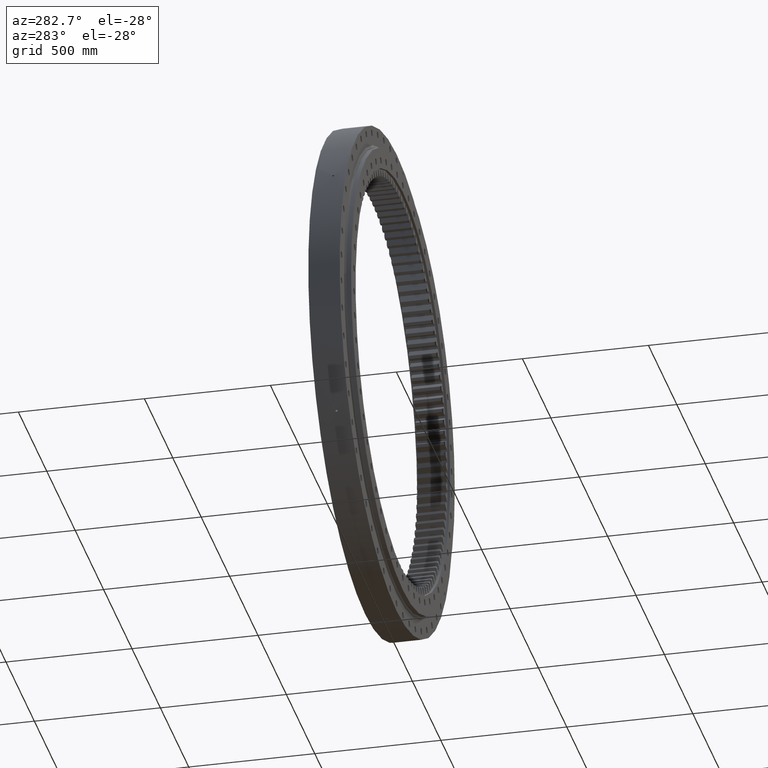
[diagram: clean part render]
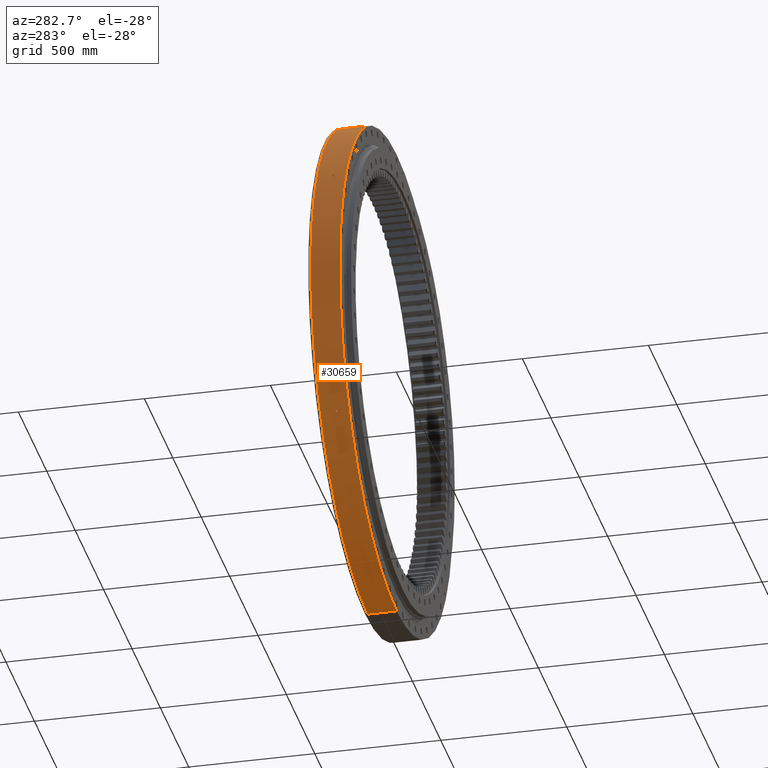
[diagram: same view with one face highlighted and labeled with its STEP entity id]
A machine part, auxiliary view. The second image highlights one B-rep face of the part: STEP entity #30659.
In plain terms, the highlighted cylindrical surface (partial cylindrical patch) has radius 1001 mm, axis along (0, -1, -0).
Its self-contained STEP definition (entity closure, byte-faithful):
#123 = CARTESIAN_POINT ( 'NONE',  ( -53.71009717715116900, 0.5890486001857689900, 999.5597077769936000 ) ) ;
#141 = CARTESIAN_POINT ( 'NONE',  ( 5.816800351749768200E-014, -22.16364734299520500, 1000.999999999999900 ) ) ;
#184 = DIRECTION ( 'NONE',  ( 1.173697223544192200E-016, -1.000000000000000000, -3.494217355385783800E-017 ) ) ;
#225 = CARTESIAN_POINT ( 'NONE',  ( -55.44209424805615100, 3.598500773544946400, 999.4655815656600500 ) ) ;
#275 = CARTESIAN_POINT ( 'NONE',  ( -895.5352936866687500, -3.906283305188838400, 447.2332695858783000 ) ) ;
#472 = CARTESIAN_POINT ( 'NONE',  ( -62.55148481795590200, 1.165122440118705200, 999.0437002542108800 ) ) ;
#600 = CARTESIAN_POINT ( 'NONE',  ( -58.49605577294612900, 4.499999984706711600, 999.2893963449601000 ) ) ;
#937 = CARTESIAN_POINT ( 'NONE',  ( -836.3232992243469000, -4.500000015293331900, -550.0584870488809200 ) ) ;
#1053 = CARTESIAN_POINT ( 'NONE',  ( -834.1708195038929700, 2.254629818377512400, -553.3173326249217300 ) ) ;
#1065 = CARTESIAN_POINT ( 'NONE',  ( -834.8135560936203800, -3.580346716517871300, -552.3471609642495000 ) ) ;
#1145 = FACE_OUTER_BOUND ( 'NONE', #3979, .T. ) ;
#1424 = CARTESIAN_POINT ( 'NONE',  ( -838.0363360817789300, -3.238286614514675600, -547.4450642312479000 ) ) ;
#1612 = CARTESIAN_POINT ( 'NONE',  ( -892.9082573457631000, 2.765460221016016200, 452.4622047582254800 ) ) ;
#1614 = CARTESIAN_POINT ( 'NONE',  ( 6.143514850021002700E-014, -49.99999999999985800, 1000.999999999999900 ) ) ;
#1653 = ORIENTED_EDGE ( 'NONE', *, *, #21719, .F. ) ;
#1685 = CARTESIAN_POINT ( 'NONE',  ( -837.2972977995744900, -4.145600684314280700, -548.5745241711293800 ) ) ;
#1859 = CARTESIAN_POINT ( 'NONE',  ( -838.7259225998566300, 1.177865458075784100, -546.3928274316252800 ) ) ;
#1955 = CARTESIAN_POINT ( 'NONE',  ( -896.2722761593717000, 2.254629818377474200, 445.7544544735959600 ) ) ;
#2013 = CARTESIAN_POINT ( 'NONE',  ( -58.49904618976302100, -4.500000015293296400, 999.2892221730144200 ) ) ;
#2170 = CARTESIAN_POINT ( 'NONE',  ( -893.4053802004301600, -3.751236001101521600, 451.4728124550855500 ) ) ;
#2292 = CARTESIAN_POINT ( 'NONE',  ( -892.6521584606968000, -1.763919964253875900, 452.9603848900544600 ) ) ;
#2402 = CARTESIAN_POINT ( 'NONE',  ( -892.4976324321650100, -0.004223968015222080400, 453.2647821417450000 ) ) ;
#2738 = CARTESIAN_POINT ( 'NONE',  ( -838.7867644021569000, -0.1107749249039266400, -546.2941732346065500 ) ) ;
#2795 = EDGE_CURVE ( 'NONE', #30788, #14313, #7138, .T. ) ;
#2929 = CARTESIAN_POINT ( 'NONE',  ( -894.5262729637369100, -4.500000015293373700, 449.2479793806604700 ) ) ;
#2977 = CARTESIAN_POINT ( 'NONE',  ( -62.69477232037120000, -0.2971005903633917600, 999.0347168760939700 ) ) ;
#3008 = CARTESIAN_POINT ( 'NONE',  ( -57.02708877419401300, 4.382877029446614600, 999.3747429568401200 ) ) ;
#3049 = CARTESIAN_POINT ( 'NONE',  ( -895.8568011685353000, -3.390448102047204100, 446.5888880405617000 ) ) ;
#3156 = B_SPLINE_CURVE_WITH_KNOTS ( 'NONE', 3,
 ( #18333, #34773, #1859, #21069, #4644, #23833, #7429, #26557, #10199, #29346 ),
 .UNSPECIFIED., .F., .F.,
 ( 4, 2, 2, 2, 4 ),
 ( 0.5001327777475546000, 0.6250995833106659500, 0.7500663888737773000, 0.8750331944368886500, 1.000000000000000000 ),
 .UNSPECIFIED. ) ;
#3158 = CARTESIAN_POINT ( 'NONE',  ( -1.790340798947973000E-013, -49.99999999999978700, -1000.999999999999900 ) ) ;
#3252 = CARTESIAN_POINT ( 'NONE',  ( -62.23949899458299500, 1.996097076471572600, 999.0631899614769500 ) ) ;
#3579 = LINE ( 'NONE', #32821, #31912 ) ;
#3635 = ORIENTED_EDGE ( 'NONE', *, *, #20009, .F. ) ;
#3742 = CARTESIAN_POINT ( 'NONE',  ( -892.4976400131396300, -2.296485245528489400E-008, 453.2647878994080800 ) ) ;
#3828 = CARTESIAN_POINT ( 'NONE',  ( -834.4564745681559500, 2.975536198828759200, -552.8864577834281100 ) ) ;
#3835 = CARTESIAN_POINT ( 'NONE',  ( -834.4564029088776400, -2.975380952713944500, -552.8865659116730700 ) ) ;
#3842 = B_SPLINE_CURVE_WITH_KNOTS ( 'NONE', 3,
 ( #13152, #32305, #15901, #35104, #18660, #2170, #21384, #4968, #24136, #7744, #26882, #10524, #29674, #13257, #32420, #16020, #35219, #18768, #2292, #21505, #5077, #24261, #7861, #26992, #10632, #29804, #13365, #32530, #16140, #35346, #18877, #2402, #21628, #5191 ),
 .UNSPECIFIED., .F., .F.,
 ( 4, 2, 2, 2, 2, 1, 1, 1, 2, 2, 2, 2, 2, 2, 2, 1, 1, 1, 2, 4 ),
 ( 0.0000000000000000000, 0.1250331944368738800, 0.1875497916553058000, 0.2188080902645257500, 0.2344372395691391700, 0.2422518142214459000, 0.2461591015475992600, 0.2481127452106789700, 0.2490895670422187700, 0.2500663888737586500, 0.3125829860924516100, 0.3750995833111446200, 0.4376161805298376400, 0.4688744791391841200, 0.4845036284438573600, 0.4923182030961938400, 0.4962254904223620300, 0.4981791340854462300, 0.4991559559169883600, 0.5001327777485304900 ),
 .UNSPECIFIED. ) ;
#3979 = EDGE_LOOP ( 'NONE', ( #29673, #12527, #30541, #6295 ) ) ;
#4032 = CARTESIAN_POINT ( 'NONE',  ( -60.45227396438700400, -3.906283305188817100, 999.1729491111520900 ) ) ;
#4035 = CARTESIAN_POINT ( 'NONE',  ( -833.8420579171032600, -1.529317444788329800E-008, -553.8126239519735900 ) ) ;
#4191 = CARTESIAN_POINT ( 'NONE',  ( -838.0041967284373600, -3.294402471475352800, -547.4942576542159700 ) ) ;
#4394 = CARTESIAN_POINT ( 'NONE',  ( -893.5082248616369000, 3.932038731058045600, 451.2727333776863400 ) ) ;
#4644 = CARTESIAN_POINT ( 'NONE',  ( -838.2978922458227100, 2.765460221009656400, -547.0501317312090400 ) ) ;
#4698 = CARTESIAN_POINT ( 'NONE',  ( -837.9763246320031800, -3.340846793404502100, -547.5369094383629500 ) ) ;
#4737 = CARTESIAN_POINT ( 'NONE',  ( -896.0419551329181300, 2.975536198828663300, 446.2172764367142600 ) ) ;
#4968 = CARTESIAN_POINT ( 'NONE',  ( -893.2465987243573400, -3.489101431032666700, 451.7869754579045300 ) ) ;
#5077 = CARTESIAN_POINT ( 'NONE',  ( -892.5312135602918000, -0.8681621089679700800, 453.1980073332677000 ) ) ;
#5191 = CARTESIAN_POINT ( 'NONE',  ( -892.4976400131396300, -2.296485245528489400E-008, 453.2647878994080800 ) ) ;
#5741 = DIRECTION ( 'NONE',  ( 5.551115123125782700E-017, -3.465980970982631900E-017, 1.000000000000000000 ) ) ;
#5797 = CARTESIAN_POINT ( 'NONE',  ( -58.20297373938638000, 4.499999984706710700, 999.3064664295393400 ) ) ;
#5848 = CARTESIAN_POINT ( 'NONE',  ( -896.1249702626129200, -2.749112268494552600, 446.0505180559710000 ) ) ;
#6050 = CARTESIAN_POINT ( 'NONE',  ( -61.77531099758158500, 2.743901500128052500, 999.0920065970430000 ) ) ;
#6295 = ORIENTED_EDGE ( 'NONE', *, *, #17800, .F. ) ;
#6499 = CARTESIAN_POINT ( 'NONE',  ( -833.8420579171032600, -1.529317444788329800E-008, -553.8126239519735900 ) ) ;
#6628 = CARTESIAN_POINT ( 'NONE',  ( -834.8109806994732500, 3.576961838036965900, -552.3510541936482200 ) ) ;
#6637 = CARTESIAN_POINT ( 'NONE',  ( -834.1720002194113000, -2.258464581218652800, -553.3155528594114700 ) ) ;
#6854 = DIRECTION ( 'NONE',  ( -1.173697223544192200E-016, 1.000000000000000000, 8.822830751849692900E-017 ) ) ;
#6864 = VERTEX_POINT ( 'NONE', #28575 ) ;
#7138 = B_SPLINE_CURVE_WITH_KNOTS ( 'NONE', 3,
 ( #17017, #2013, #28677, #32559, #34782, #26769, #4032, #30054, #30434, #24288, #16726, #12406, #30714, #26777, #8914, #25409, #2977, #27025 ),
 .UNSPECIFIED., .F., .F.,
 ( 4, 2, 2, 2, 2, 2, 2, 2, 4 ),
 ( 0.02110576851530860200, 0.02198441943667180400, 0.02286307035803500700, 0.02374172127939821000, 0.02462037220076141200, 0.02549902312212461200, 0.02637767404348781400, 0.02725632496485101000, 0.02813497588621420600 ),
 .UNSPECIFIED. ) ;
#7186 = CARTESIAN_POINT ( 'NONE',  ( -894.2619084245410500, 4.499999984706656500, 449.7743724570999600 ) ) ;
#7413 = CARTESIAN_POINT ( 'NONE',  ( -896.5368302374780600, 0.2973931663676460700, 445.2220929241219100 ) ) ;
#7429 = CARTESIAN_POINT ( 'NONE',  ( -837.5677635711376800, 3.932038731055854400, -548.1644545316715900 ) ) ;
#7524 = CARTESIAN_POINT ( 'NONE',  ( -895.7555350885501200, 3.576961838036913900, 446.7919895471224000 ) ) ;
#7633 = FACE_BOUND ( 'NONE', #18906, .T. ) ;
#7723 = EDGE_CURVE ( 'NONE', #32362, #34369, #23954, .T. ) ;
#7744 = CARTESIAN_POINT ( 'NONE',  ( -893.1690353992380600, -3.340846793395658500, 451.9403301820597100 ) ) ;
#7799 = CARTESIAN_POINT ( 'NONE',  ( -838.7876409684212100, -2.297867163744478400E-008, -546.2932351193359200 ) ) ;
#7861 = CARTESIAN_POINT ( 'NONE',  ( -892.5025079389879500, -0.3358842403083726100, 453.2543592952826500 ) ) ;
#7928 = CARTESIAN_POINT ( 'NONE',  ( -838.7876322051986300, -0.004604410138225904400, -546.2932293645850500 ) ) ;
#8033 = CARTESIAN_POINT ( 'NONE',  ( -836.5586060108626000, -4.500000015293331900, -549.7007204610322300 ) ) ;
#8504 = FACE_BOUND ( 'NONE', #22669, .T. ) ;
#8625 = CARTESIAN_POINT ( 'NONE',  ( -896.3337933886986100, -1.996048218433605200, 445.6307254273058900 ) ) ;
#8830 = CARTESIAN_POINT ( 'NONE',  ( -61.17081543727868400, 3.390685805115340100, 999.1292081046175300 ) ) ;
#8911 = EDGE_CURVE ( 'NONE', #34417, #29686, #3579, .T. ) ;
#8914 = CARTESIAN_POINT ( 'NONE',  ( -62.54959784288273300, -1.173031028331439600, 999.0438184546160300 ) ) ;
#8958 = EDGE_CURVE ( 'NONE', #14899, #29686, #21183, .T. ) ;
#9286 = CARTESIAN_POINT ( 'NONE',  ( -833.8420579171032600, 0.2973931663676865300, -553.8126239519737100 ) ) ;
#9402 = CARTESIAN_POINT ( 'NONE',  ( -835.2269425153566500, 4.045626621761965000, -551.7218754687313500 ) ) ;
#9408 = CARTESIAN_POINT ( 'NONE',  ( -833.9702074261040300, -1.455001650605779500, -553.6196399524699200 ) ) ;
#9863 = AXIS2_PLACEMENT_3D ( 'NONE', #24898, #184, #5741 ) ;
#10146 = LINE ( 'NONE', #141, #23831 ) ;
#10199 = CARTESIAN_POINT ( 'NONE',  ( -836.6469867313222700, 4.499999984706680500, -549.5663441038568600 ) ) ;
#10294 = CARTESIAN_POINT ( 'NONE',  ( -895.4186312371933800, 4.045626621761886800, 447.4668124091402900 ) ) ;
#10524 = CARTESIAN_POINT ( 'NONE',  ( -893.1195008415495500, -3.238286614507509800, 452.0382242256389400 ) ) ;
#10632 = CARTESIAN_POINT ( 'NONE',  ( -892.4983791230314400, -0.1436212880177891700, 453.2627548440990500 ) ) ;
#10705 = CARTESIAN_POINT ( 'NONE',  ( -838.7875660596593000, -0.02249321751446273900, -546.2932441220414100 ) ) ;
#10989 = CARTESIAN_POINT ( 'NONE',  ( -838.7874438673571800, -0.04507707817842632900, -546.2933353706264400 ) ) ;
#11072 = CARTESIAN_POINT ( 'NONE',  ( -836.3232992243466700, 4.499999984706673400, -550.0584870488808100 ) ) ;
#11224 = CARTESIAN_POINT ( 'NONE',  ( -838.7872632152021900, -0.06619493256617349500, -546.2935400572921500 ) ) ;
#11307 = CARTESIAN_POINT ( 'NONE',  ( -838.7810434952458500, -0.3358842403311181300, -546.3026651688483100 ) ) ;
#11345 = CARTESIAN_POINT ( 'NONE',  ( -838.7657665641706900, -0.6256152559329912800, -546.3260988310001900 ) ) ;
#11385 = CARTESIAN_POINT ( 'NONE',  ( -896.4721251969492600, -1.173031028331491800, 445.3523684988694000 ) ) ;
#11401 = CARTESIAN_POINT ( 'NONE',  ( -838.7465940752368900, -0.8681621090002056300, -546.3557009471400100 ) ) ;
#11431 = CARTESIAN_POINT ( 'NONE',  ( -838.6644656583565600, -1.437042305629823600, -546.4821032343032800 ) ) ;
#11572 = CARTESIAN_POINT ( 'NONE',  ( -60.45325996462229100, 3.905891569578857900, 999.1728899068973500 ) ) ;
#11839 = CARTESIAN_POINT ( 'NONE',  ( -838.6012794531036400, -1.763919964283712000, -546.5792535249606800 ) ) ;
#11927 = CARTESIAN_POINT ( 'NONE',  ( -836.1603290349384000, -4.500000015293332800, -550.3062711840052500 ) ) ;
#11949 = CARTESIAN_POINT ( 'NONE',  ( -838.3990735169992400, -2.460531877008639500, -546.8894819504211000 ) ) ;
#11991 = ORIENTED_EDGE ( 'NONE', *, *, #21766, .T. ) ;
#12031 = CARTESIAN_POINT ( 'NONE',  ( -835.9990136380135900, -4.470769646186595600, -550.5512980099066500 ) ) ;
#12150 = CARTESIAN_POINT ( 'NONE',  ( -835.6816333547277500, 4.356198128965611500, -551.0329319442098500 ) ) ;
#12162 = CARTESIAN_POINT ( 'NONE',  ( -833.8581797090478200, -0.5911220564803472100, -553.7883526357344400 ) ) ;
#12406 = CARTESIAN_POINT ( 'NONE',  ( -62.09932497557144200, -2.258464581218607000, 999.0719197453938700 ) ) ;
#12527 = ORIENTED_EDGE ( 'NONE', *, *, #8911, .T. ) ;
#12530 = EDGE_CURVE ( 'NONE', #34417, #29509, #34860, .T. ) ;
#12633 = EDGE_CURVE ( 'NONE', #30788, #35324, #22845, .T. ) ;
#13032 = CARTESIAN_POINT ( 'NONE',  ( -895.0493340628706800, 4.356198128965529800, 448.2050579891644000 ) ) ;
#13069 = CARTESIAN_POINT ( 'NONE',  ( -58.20297373938638700, -4.500000015293294600, 999.3064664295394600 ) ) ;
#13072 = DIRECTION ( 'NONE',  ( 1.173697223544192200E-016, -1.000000000000000000, -3.494217355385783800E-017 ) ) ;
#13152 = CARTESIAN_POINT ( 'NONE',  ( -894.5262729637369100, -4.500000015293373700, 449.2479793806604700 ) ) ;
#13257 = CARTESIAN_POINT ( 'NONE',  ( -893.1006820671341300, -3.197407672163022200, 452.0754047482292300 ) ) ;
#13365 = CARTESIAN_POINT ( 'NONE',  ( -892.4977152205467500, -0.06619493255641380200, 453.2643082865456000 ) ) ;
#13409 = CARTESIAN_POINT ( 'NONE',  ( -57.77548539244760700, -4.500000015293294600, 999.3313647904192300 ) ) ;
#13524 = CARTESIAN_POINT ( 'NONE',  ( -55.57369263709191600, -3.653220908615754300, 999.4560929048618600 ) ) ;
#13571 = CARTESIAN_POINT ( 'NONE',  ( -55.71576539613841600, -3.751236001126307500, 999.4481613588081900 ) ) ;
#13646 = CARTESIAN_POINT ( 'NONE',  ( -56.14365050817587400, -4.013416345553450200, 999.4241904270647900 ) ) ;
#13662 = EDGE_CURVE ( 'NONE', #35324, #28351, #16134, .T. ) ;
#13713 = EDGE_CURVE ( 'NONE', #14313, #28351, #30138, .T. ) ;
#13809 = CARTESIAN_POINT ( 'NONE',  ( -57.26309134567581800, -4.439702155455909100, 999.3607858838087200 ) ) ;
#13933 = CARTESIAN_POINT ( 'NONE',  ( -55.14183719043374800, -3.294402471478329100, 999.4800516719069500 ) ) ;
#13939 = ORIENTED_EDGE ( 'NONE', *, *, #13662, .F. ) ;
#13966 = CARTESIAN_POINT ( 'NONE',  ( -53.82710770146160000, 1.177865458075817900, 999.5543694998294800 ) ) ;
#13990 = DIRECTION ( 'NONE',  ( 1.173697223544192200E-016, -1.000000000000000000, -3.494217355385783800E-017 ) ) ;
#14006 = CARTESIAN_POINT ( 'NONE',  ( -895.0483513162815800, -4.356562847564605400, 448.2070184079345800 ) ) ;
#14063 = CYLINDRICAL_SURFACE ( 'NONE', #9863, 1000.999999999999900 ) ;
#14126 = CARTESIAN_POINT ( 'NONE',  ( -896.5368302374781700, -0.2971005903634649800, 445.2220929241220200 ) ) ;
#14195 = CARTESIAN_POINT ( 'NONE',  ( -62.69477232037115800, -1.529313819840177900E-008, 999.0347168760936300 ) ) ;
#14313 = VERTEX_POINT ( 'NONE', #31180 ) ;
#14315 = CARTESIAN_POINT ( 'NONE',  ( -59.65090648700672200, 4.269913052637601700, 999.2211180362249900 ) ) ;
#14520 = ORIENTED_EDGE ( 'NONE', *, *, #12633, .F. ) ;
#14777 = CARTESIAN_POINT ( 'NONE',  ( -833.9214815019721500, 1.165122440118652200, -553.6930250238959800 ) ) ;
#14786 = CARTESIAN_POINT ( 'NONE',  ( -835.5259209993375900, -4.270358758965170600, -551.2689993946704600 ) ) ;
#14890 = CARTESIAN_POINT ( 'NONE',  ( -836.1619750806763700, 4.499999984706678700, -550.3037684930466200 ) ) ;
#14899 = VERTEX_POINT ( 'NONE', #1614 ) ;
#14903 = CARTESIAN_POINT ( 'NONE',  ( -833.8420579171032600, -1.529317444788329800E-008, -553.8126239519735900 ) ) ;
#15046 = CARTESIAN_POINT ( 'NONE',  ( -55.19271076724034900, -3.340846793408618300, 999.4772396204118600 ) ) ;
#15061 = VERTEX_POINT ( 'NONE', #35472 ) ;
#15174 = CARTESIAN_POINT ( 'NONE',  ( -55.29512903254073600, -3.431549258200794900, 999.4715714788976600 ) ) ;
#15336 = VERTEX_POINT ( 'NONE', #3742 ) ;
#15594 = CARTESIAN_POINT ( 'NONE',  ( -55.36430151671680700, -3.489101431050981800, 999.4677340682886800 ) ) ;
#15685 = CARTESIAN_POINT ( 'NONE',  ( -896.4729663199314000, 1.165122440118616000, 445.3506752303168800 ) ) ;
#15760 = CARTESIAN_POINT ( 'NONE',  ( -53.70999904471483400, -2.297862804065447900E-008, 999.5580230187420100 ) ) ;
#15799 = CARTESIAN_POINT ( 'NONE',  ( -894.6580308536260900, 4.499999984706621000, 448.9856278519150700 ) ) ;
#15829 = CARTESIAN_POINT ( 'NONE',  ( -55.03016807923457100, -3.186076329583747800, 999.4862083227768600 ) ) ;
#15878 = CARTESIAN_POINT ( 'NONE',  ( -55.04155609547285600, -3.197407672169836300, 999.4855811814612700 ) ) ;
#15901 = CARTESIAN_POINT ( 'NONE',  ( -894.1033737941719400, -4.439702155443713500, 450.0891011373708500 ) ) ;
#16020 = CARTESIAN_POINT ( 'NONE',  ( -893.0955311793251200, -3.186076329575780400, 452.0855806302490100 ) ) ;
#16059 = CARTESIAN_POINT ( 'NONE',  ( -55.05401050080401900, -3.209744162153377100, 999.4848951686427700 ) ) ;
#16103 = CARTESIAN_POINT ( 'NONE',  ( -55.08316475977208900, -3.238286614516185500, 999.4832884568785400 ) ) ;
#16124 = VERTEX_POINT ( 'NONE', #27505 ) ;
#16134 = B_SPLINE_CURVE_WITH_KNOTS ( 'NONE', 3,
 ( #27608, #123, #13966, #33138, #16735, #225, #19474, #3008, #22209, #5797 ),
 .UNSPECIFIED., .F., .F.,
 ( 4, 2, 2, 2, 4 ),
 ( 0.5001327777475533800, 0.6250995833106650600, 0.7500663888737766300, 0.8750331944368883200, 1.000000000000000000 ),
 .UNSPECIFIED. ) ;
#16140 = CARTESIAN_POINT ( 'NONE',  ( -892.4976103553304900, -0.02249321750814772100, 453.2647185251643700 ) ) ;
#16172 = CARTESIAN_POINT ( 'NONE',  ( -53.93515128527637600, -1.437042305638047700, 999.5457841285905300 ) ) ;
#16217 = CARTESIAN_POINT ( 'NONE',  ( -54.05087900759797000, -1.763919964290980200, 999.5396384150016000 ) ) ;
#16288 = CARTESIAN_POINT ( 'NONE',  ( -54.42064767307452700, -2.460531877012798900, 999.5196371502689800 ) ) ;
#16334 = CARTESIAN_POINT ( 'NONE',  ( -54.67561084365883800, -2.830677733647925200, 999.5057278854939100 ) ) ;
#16385 = CARTESIAN_POINT ( 'NONE',  ( -53.71642618590059500, -0.2514979685270209400, 999.5573233213132200 ) ) ;
#16458 = CARTESIAN_POINT ( 'NONE',  ( -53.72146444373979100, -0.3358842403368558800, 999.5570244641274900 ) ) ;
#16538 = CARTESIAN_POINT ( 'NONE',  ( -53.74939705600516500, -0.6256152559408613100, 999.5555110848001700 ) ) ;
#16582 = CARTESIAN_POINT ( 'NONE',  ( -53.78461948505530200, -0.8681621090087192600, 999.5537082803997500 ) ) ;
#16726 = CARTESIAN_POINT ( 'NONE',  ( -61.77140512362383600, -2.749112268494515700, 999.0922482409831700 ) ) ;
#16735 = CARTESIAN_POINT ( 'NONE',  ( -54.61036509993460400, 2.765460221009677700, 999.5123364894373000 ) ) ;
#16760 = ORIENTED_EDGE ( 'NONE', *, *, #23625, .T. ) ;
#16779 = CARTESIAN_POINT ( 'NONE',  ( -895.4198382239716200, -4.044440409941506300, 447.4643982154885300 ) ) ;
#16892 = EDGE_CURVE ( 'NONE', #32362, #31399, #22978, .T. ) ;
#16946 = CARTESIAN_POINT ( 'NONE',  ( -53.71212927720601000, -0.1436212880356238000, 999.5576465790297800 ) ) ;
#16979 = CARTESIAN_POINT ( 'NONE',  ( -62.66563844398267900, 0.5898149743530550800, 999.0365463930562600 ) ) ;
#17017 = CARTESIAN_POINT ( 'NONE',  ( -58.20297373938638700, -4.500000015293294600, 999.3064664295394600 ) ) ;
#17090 = CARTESIAN_POINT ( 'NONE',  ( -58.78763371543068700, 4.471548277093387600, 999.2722844828621200 ) ) ;
#17171 = CARTESIAN_POINT ( 'NONE',  ( -838.0653631000908500, -3.186076329583844600, -547.4006276925370000 ) ) ;
#17300 = CARTESIAN_POINT ( 'NONE',  ( -53.71045200534126000, -0.06619493256782922600, 999.5578483438354200 ) ) ;
#17423 = CARTESIAN_POINT ( 'NONE',  ( -53.71004429566752200, -0.02249321751501601200, 999.5579626472037900 ) ) ;
#17541 = CARTESIAN_POINT ( 'NONE',  ( -834.0943529952630800, 1.996097076471518000, -553.4325822288674300 ) ) ;
#17550 = CARTESIAN_POINT ( 'NONE',  ( -835.0830197222777500, -3.906283305188827300, -551.9396795252757800 ) ) ;
#17563 = EDGE_CURVE ( 'NONE', #34369, #22397, #3156, .T. ) ;
#17648 = CARTESIAN_POINT ( 'NONE',  ( -53.71018441541145400, -0.04507707817958465900, 999.5579024498582600 ) ) ;
#17699 = CARTESIAN_POINT ( 'NONE',  ( -53.71000354017476800, -0.007205652506109765100, 999.5580051039505600 ) ) ;
#17800 = EDGE_CURVE ( 'NONE', #29509, #14899, #10146, .T. ) ;
#17830 = CARTESIAN_POINT ( 'NONE',  ( -53.71001076255112100, -0.01171487212509205800, 999.5579923923111200 ) ) ;
#17895 = CARTESIAN_POINT ( 'NONE',  ( -53.70999844256573400, -0.004604410138181719300, 999.5580125521933000 ) ) ;
#18081 = CARTESIAN_POINT ( 'NONE',  ( -892.7576247180628600, 2.266285391879827600, 452.7597925418518800 ) ) ;
#18333 = CARTESIAN_POINT ( 'NONE',  ( -838.7876409684212100, -2.297867163744478400E-008, -546.2932351193359200 ) ) ;
#18424 = CARTESIAN_POINT ( 'NONE',  ( -896.3338519898495600, 1.996097076471462900, 445.6306077326114000 ) ) ;
#18584 = CARTESIAN_POINT ( 'NONE',  ( -838.2595461550635000, -2.830677733645931200, -547.1033319007895000 ) ) ;
#18653 = ORIENTED_EDGE ( 'NONE', *, *, #17563, .F. ) ;
#18660 = CARTESIAN_POINT ( 'NONE',  ( -893.5985633206004200, -4.013416345526501900, 451.0902676123006400 ) ) ;
#18696 = CARTESIAN_POINT ( 'NONE',  ( -53.71000024050987100, -0.004223968019882963200, 999.5580135745939300 ) ) ;
#18705 = AXIS2_PLACEMENT_3D ( 'NONE', #29947, #6854, #33230 ) ;
#18768 = CARTESIAN_POINT ( 'NONE',  ( -892.8197211900678700, -2.460531876987595900, 452.6301551998624900 ) ) ;
#18781 = CARTESIAN_POINT ( 'NONE',  ( 5.468638946483091600E-014, 65.00000000000009900, 1000.999999999999900 ) ) ;
#18877 = CARTESIAN_POINT ( 'NONE',  ( -892.4976267462051300, -0.007205652501077251600, 453.2647750488298500 ) ) ;
#18906 = EDGE_LOOP ( 'NONE', ( #33995, #30114, #13939, #14520 ) ) ;
#18915 = CARTESIAN_POINT ( 'NONE',  ( -53.70999904471483400, -2.297862804065447900E-008, 999.5580230187420100 ) ) ;
#19440 = CARTESIAN_POINT ( 'NONE',  ( -836.8402824485361900, -4.439702155449324100, -549.2716847464661200 ) ) ;
#19472 = ORIENTED_EDGE ( 'NONE', *, *, #7723, .F. ) ;
#19474 = CARTESIAN_POINT ( 'NONE',  ( -55.94046129049388600, 3.932038731055872600, 999.4371879093598600 ) ) ;
#19480 = CARTESIAN_POINT ( 'NONE',  ( -838.7876085862360500, -0.01171487212484562100, -546.2932299540644900 ) ) ;
#19518 = CARTESIAN_POINT ( 'NONE',  ( -895.7534511500617800, -3.580346716517869100, 446.7961665185778200 ) ) ;
#19645 = CARTESIAN_POINT ( 'NONE',  ( -838.7876232060270900, -0.007205652506002839300, -546.2932300551228800 ) ) ;
#19702 = CARTESIAN_POINT ( 'NONE',  ( -62.46507865855290500, 1.450989080068843600, 999.0491112649460800 ) ) ;
#19820 = CARTESIAN_POINT ( 'NONE',  ( -58.20297373938638000, 4.499999984706710700, 999.3064664295393400 ) ) ;
#20009 = EDGE_CURVE ( 'NONE', #16124, #15336, #3842, .T. ) ;
#20018 = ORIENTED_EDGE ( 'NONE', *, *, #27264, .T. ) ;
#20137 = CARTESIAN_POINT ( 'NONE',  ( -836.3232992243469000, -4.500000015293331900, -550.0584870488809200 ) ) ;
#20164 = B_SPLINE_CURVE_WITH_KNOTS ( 'NONE', 3,
 ( #23821, #7413, #32072, #15685, #34880, #18424, #1955, #21173, #4737, #23922, #7524, #26654, #10294, #29445, #13032, #32180, #15799, #35001 ),
 .UNSPECIFIED., .F., .F.,
 ( 4, 2, 2, 2, 2, 2, 2, 2, 4 ),
 ( 8.121357501130412000E-018, 0.0008795162816889978700, 0.001759032563377987500, 0.002638548845066976600, 0.003518065126755965900, 0.004397581408444954300, 0.005277097690133942700, 0.006156613971822932000, 0.007036130253511921300 ),
 .UNSPECIFIED. ) ;
#20283 = CARTESIAN_POINT ( 'NONE',  ( -834.3514029322162700, 2.743901500127981800, -553.0449919491154600 ) ) ;
#20294 = CARTESIAN_POINT ( 'NONE',  ( -834.6857226752373400, -3.390448102047200200, -552.5403039447377300 ) ) ;
#20519 = CARTESIAN_POINT ( 'NONE',  ( -836.3232992243469000, -4.500000015293331900, -550.0584870488809200 ) ) ;
#20630 = CARTESIAN_POINT ( 'NONE',  ( -837.6896148043148300, -3.751236001114605300, -547.9753489037433400 ) ) ;
#20655 = B_SPLINE_CURVE_WITH_KNOTS ( 'NONE', 3,
 ( #28981, #26204, #34535, #18081, #1612, #20835, #4394, #23577, #7186, #26330 ),
 .UNSPECIFIED., .F., .F.,
 ( 4, 2, 2, 2, 4 ),
 ( 0.5001327777485304900, 0.6250995833113979200, 0.7500663888742653600, 0.8750331944371325700, 1.000000000000000000 ),
 .UNSPECIFIED. ) ;
#20835 = CARTESIAN_POINT ( 'NONE',  ( -893.2836309680805000, 3.598500773548376100, 451.7185287249958500 ) ) ;
#21063 = EDGE_LOOP ( 'NONE', ( #21086, #20018, #18653, #19472 ) ) ;
#21069 = CARTESIAN_POINT ( 'NONE',  ( -838.4802945124483800, 2.266285391871817500, -546.7708861571684300 ) ) ;
#21086 = ORIENTED_EDGE ( 'NONE', *, *, #16892, .T. ) ;
#21173 = CARTESIAN_POINT ( 'NONE',  ( -896.1267139298011000, 2.743901500127937000, 446.0470146479296400 ) ) ;
#21183 = CIRCLE ( 'NONE', #24174, 1000.999999999999900 ) ;
#21384 = CARTESIAN_POINT ( 'NONE',  ( -893.3412127412830200, -3.653220908592729600, 451.5998168466272200 ) ) ;
#21505 = CARTESIAN_POINT ( 'NONE',  ( -892.5996169436292600, -1.437042305597548800, 453.0636808942993500 ) ) ;
#21628 = CARTESIAN_POINT ( 'NONE',  ( -892.4976306477676600, -0.004604410124421257800, 453.2647831876100200 ) ) ;
#21719 = EDGE_CURVE ( 'NONE', #15336, #6864, #20655, .T. ) ;
#21766 = EDGE_CURVE ( 'NONE', #15061, #6864, #20164, .T. ) ;
#21854 = B_SPLINE_CURVE_WITH_KNOTS ( 'NONE', 3,
 ( #2929, #22010, #30431, #14006, #33178, #16779, #275, #19518, #3049, #22248, #5848, #24992, #8625, #27764, #11385, #30549, #14126, #33316 ),
 .UNSPECIFIED., .F., .F.,
 ( 4, 2, 2, 2, 2, 2, 2, 2, 4 ),
 ( 0.02110576851530874400, 0.02198441943667192600, 0.02286307035803510800, 0.02374172127939829000, 0.02462037220076147100, 0.02549902312212465300, 0.02637767404348783500, 0.02725632496485101700, 0.02813497588621419900 ),
 .UNSPECIFIED. ) ;
#22010 = CARTESIAN_POINT ( 'NONE',  ( -894.6593752247049500, -4.500000015293363000, 448.9829509890109300 ) ) ;
#22177 = CARTESIAN_POINT ( 'NONE',  ( -56.43082490139589400, -4.145600684326720600, 999.4079925000592100 ) ) ;
#22189 = FACE_BOUND ( 'NONE', #21063, .T. ) ;
#22209 = CARTESIAN_POINT ( 'NONE',  ( -57.61492169321446300, 4.499999984706709800, 999.3407165609561400 ) ) ;
#22248 = CARTESIAN_POINT ( 'NONE',  ( -896.0420129450861900, -2.975380952713947200, 446.2171603138365900 ) ) ;
#22397 = VERTEX_POINT ( 'NONE', #11072 ) ;
#22431 = CARTESIAN_POINT ( 'NONE',  ( -53.71124975950325400, -0.1107749249065368100, 999.5577329477240500 ) ) ;
#22470 = CARTESIAN_POINT ( 'NONE',  ( -62.10145665547536000, 2.254629818377587000, 999.0717870985159800 ) ) ;
#22669 = EDGE_LOOP ( 'NONE', ( #16760, #11991, #1653, #3635 ) ) ;
#22670 = CARTESIAN_POINT ( 'NONE',  ( -55.03326225286296800, -3.189160212842113000, 999.4860379420888400 ) ) ;
#22845 = B_SPLINE_CURVE_WITH_KNOTS ( 'NONE', 3,
 ( #13069, #13409, #13809, #22177, #13646, #13571, #13524, #15594, #15174, #15046, #13933, #16103, #16059, #15878, #22670, #15829, #16334, #16288, #16217, #16172, #16582, #16538, #16458, #16385, #16946, #22431, #17300, #17648, #17423, #17830, #17699, #18696, #17895, #18915 ),
 .UNSPECIFIED., .F., .F.,
 ( 4, 2, 2, 2, 2, 1, 1, 1, 2, 2, 2, 2, 2, 2, 2, 1, 1, 1, 2, 4 ),
 ( 0.0000000000000000000, 0.1250331944368858700, 0.1875497916553281700, 0.2188080902645498400, 0.2344372395691611500, 0.2422518142214668000, 0.2461591015476192700, 0.2481127452106951200, 0.2490895670422334800, 0.2500663888737718100, 0.3125829860922171300, 0.3750995833106624500, 0.4376161805291078900, 0.4688744791383306900, 0.4845036284429420900, 0.4923182030952477600, 0.4962254904214006300, 0.4981791340844771200, 0.4991559559160151900, 0.5001327777475533800 ),
 .UNSPECIFIED. ) ;
#22978 = B_SPLINE_CURVE_WITH_KNOTS ( 'NONE', 3,
 ( #937, #11927, #12031, #31208, #14786, #33976, #17550, #1065, #20294, #3835, #23057, #6637, #25769, #9408, #28551, #12162, #31323, #14903 ),
 .UNSPECIFIED., .F., .F.,
 ( 4, 2, 2, 2, 2, 2, 2, 2, 4 ),
 ( 0.02110576851530855000, 0.02198441943667173200, 0.02286307035803491300, 0.02374172127939809200, 0.02462037220076127400, 0.02549902312212445900, 0.02637767404348763700, 0.02725632496485081900, 0.02813497588621400100 ),
 .UNSPECIFIED. ) ;
#23046 = CARTESIAN_POINT ( 'NONE',  ( -834.6858681629859100, 3.390685805115301900, -552.5400841912055500 ) ) ;
#23057 = CARTESIAN_POINT ( 'NONE',  ( -834.3535651389854600, -2.749112268494549900, -553.0417301850138800 ) ) ;
#23512 = DIRECTION ( 'NONE',  ( 1.173697223544192200E-016, -1.000000000000000000, -3.494217355385783800E-017 ) ) ;
#23577 = CARTESIAN_POINT ( 'NONE',  ( -893.9974596882663000, 4.382877029447044500, 450.3004638960936200 ) ) ;
#23625 = EDGE_CURVE ( 'NONE', #16124, #15061, #21854, .T. ) ;
#23821 = CARTESIAN_POINT ( 'NONE',  ( -896.5368302374778300, -1.529321671479578400E-008, 445.2220929241219100 ) ) ;
#23831 = VECTOR ( 'NONE', #13990, 1000.000000000000000 ) ;
#23833 = CARTESIAN_POINT ( 'NONE',  ( -837.8415367200186700, 3.598500773544929000, -547.7470528406614700 ) ) ;
#23922 = CARTESIAN_POINT ( 'NONE',  ( -895.8566836002678400, 3.390685805115204700, 446.5891239134140300 ) ) ;
#23954 = B_SPLINE_CURVE_WITH_KNOTS ( 'NONE', 3,
 ( #20519, #8033, #19440, #1685, #25999, #20630, #24891, #24612, #24445, #4698, #4191, #1424, #33953, #33880, #28324, #17171, #18584, #11949, #11839, #11431, #11401, #11345, #11307, #28283, #27441, #2738, #11224, #10989, #10705, #19480, #19645, #32710, #7928, #7799 ),
 .UNSPECIFIED., .F., .F.,
 ( 4, 2, 2, 2, 2, 1, 1, 1, 2, 2, 2, 2, 2, 2, 2, 1, 1, 1, 2, 4 ),
 ( 0.0000000000000000000, 0.1250331944367675000, 0.1875497916551358600, 0.2188080902643175000, 0.2344372395689125500, 0.2422518142212100600, 0.2461591015473587900, 0.2481127452104387500, 0.2490895670419731600, 0.2500663888735075700, 0.3125829860920179000, 0.3750995833105281700, 0.4376161805290385000, 0.4688744791382959400, 0.4845036284429245500, 0.4923182030952394900, 0.4962254904213970800, 0.4981791340844758400, 0.4991559559160152500, 0.5001327777475546000 ),
 .UNSPECIFIED. ) ;
#24136 = CARTESIAN_POINT ( 'NONE',  ( -893.2153357773426000, -3.431549258184392900, 451.8487992917453100 ) ) ;
#24174 = AXIS2_PLACEMENT_3D ( 'NONE', #29128, #23512, #28365 ) ;
#24261 = CARTESIAN_POINT ( 'NONE',  ( -892.5151636201767400, -0.6256152559031834500, 453.2294122538057800 ) ) ;
#24288 = CARTESIAN_POINT ( 'NONE',  ( -61.58561003620478400, -2.975380952713921400, 999.1037262255081300 ) ) ;
#24445 = CARTESIAN_POINT ( 'NONE',  ( -837.9202067448109100, -3.431549258194546600, -547.6227721871653100 ) ) ;
#24612 = CARTESIAN_POINT ( 'NONE',  ( -837.8822972076521900, -3.489101431043530400, -547.6807586103989300 ) ) ;
#24891 = CARTESIAN_POINT ( 'NONE',  ( -837.7675201042096700, -3.653220908605280000, -547.8562760582524300 ) ) ;
#24898 = CARTESIAN_POINT ( 'NONE',  ( 2.601341135008604100E-015, -22.16364734299516900, -7.744460120454373600E-016 ) ) ;
#24992 = CARTESIAN_POINT ( 'NONE',  ( -896.2713251949857100, -2.258464581218650100, 445.7563668859846800 ) ) ;
#25179 = CARTESIAN_POINT ( 'NONE',  ( -61.58548056475876100, 2.975536198828797800, 999.1037342201406100 ) ) ;
#25409 = CARTESIAN_POINT ( 'NONE',  ( -62.66569184795253700, -0.5911220564803135700, 999.0365430993525700 ) ) ;
#25758 = CARTESIAN_POINT ( 'NONE',  ( -835.0824754497714400, 3.905891569578773000, -551.9405038244000300 ) ) ;
#25769 = CARTESIAN_POINT ( 'NONE',  ( -834.0944256212831100, -1.996048218433576200, -553.4324726314343900 ) ) ;
#25999 = CARTESIAN_POINT ( 'NONE',  ( -837.4549128124582500, -4.013416345539866400, -548.3339228147901800 ) ) ;
#26204 = CARTESIAN_POINT ( 'NONE',  ( -892.4991481228038300, 0.5890486001984000000, 453.2655452933494800 ) ) ;
#26330 = CARTESIAN_POINT ( 'NONE',  ( -894.5262729637368000, 4.499999984706631700, 449.2479793806604700 ) ) ;
#26557 = CARTESIAN_POINT ( 'NONE',  ( -836.9703709140674200, 4.382877029446592400, -549.0742790607464500 ) ) ;
#26654 = CARTESIAN_POINT ( 'NONE',  ( -895.5357354143973200, 3.905891569578724600, 447.2323860824990300 ) ) ;
#26769 = CARTESIAN_POINT ( 'NONE',  ( -60.19438296825426700, -4.044440409941460100, 999.1885260622558500 ) ) ;
#26777 = CARTESIAN_POINT ( 'NONE',  ( -62.46356851977669300, -1.455001650605755700, 999.0492056066190100 ) ) ;
#26882 = CARTESIAN_POINT ( 'NONE',  ( -893.1460339188676000, -3.294402471467226900, 451.9857940177009300 ) ) ;
#26992 = CARTESIAN_POINT ( 'NONE',  ( -892.5002476279834100, -0.2514979685023592300, 453.2588719831540500 ) ) ;
#27025 = CARTESIAN_POINT ( 'NONE',  ( -62.69477232037115800, -1.529313819840177900E-008, 999.0347168760936300 ) ) ;
#27264 = EDGE_CURVE ( 'NONE', #31399, #22397, #27423, .T. ) ;
#27411 = CARTESIAN_POINT ( 'NONE',  ( -1.790340798947973000E-013, 65.00000000000027000, -1000.999999999999900 ) ) ;
#27423 = B_SPLINE_CURVE_WITH_KNOTS ( 'NONE', 3,
 ( #6499, #9286, #31194, #14777, #33964, #17541, #1053, #20283, #3828, #23046, #6628, #25758, #9402, #28539, #12150, #31312, #14890, #34101 ),
 .UNSPECIFIED., .F., .F.,
 ( 4, 2, 2, 2, 2, 2, 2, 2, 4 ),
 ( 3.231174267785264400E-027, 0.0008795162816889901700, 0.001759032563377980300, 0.002638548845066969200, 0.003518065126755958100, 0.004397581408444948200, 0.005277097690133938400, 0.006156613971822927700, 0.007036130253511917900 ),
 .UNSPECIFIED. ) ;
#27441 = CARTESIAN_POINT ( 'NONE',  ( -838.7862498458223400, -0.1436212880324221300, -546.2948917349331200 ) ) ;
#27505 = CARTESIAN_POINT ( 'NONE',  ( -894.5262729637369100, -4.500000015293373700, 449.2479793806604700 ) ) ;
#27608 = CARTESIAN_POINT ( 'NONE',  ( -53.70999904471483400, -2.297862804065447900E-008, 999.5580230187420100 ) ) ;
#27764 = CARTESIAN_POINT ( 'NONE',  ( -896.4337759458841200, -1.455001650605809000, 445.4295656541508500 ) ) ;
#27830 = CARTESIAN_POINT ( 'NONE',  ( -62.69477232037120000, 0.2973931663677288300, 999.0347168760938500 ) ) ;
#27948 = CARTESIAN_POINT ( 'NONE',  ( -60.94455438907344600, 3.576961838037052500, 999.1430437407690300 ) ) ;
#28283 = CARTESIAN_POINT ( 'NONE',  ( -838.7838214420801300, -0.2514979685221867500, -546.2984513381618400 ) ) ;
#28324 = CARTESIAN_POINT ( 'NONE',  ( -838.0636684592723200, -3.189160212841978000, -547.4032221351585600 ) ) ;
#28351 = VERTEX_POINT ( 'NONE', #30636 ) ;
#28365 = DIRECTION ( 'NONE',  ( 5.551115123125782700E-017, -3.465980970982631900E-017, 1.000000000000000000 ) ) ;
#28539 = CARTESIAN_POINT ( 'NONE',  ( -835.5254189737544300, 4.269913052637566200, -551.2697593946342100 ) ) ;
#28551 = CARTESIAN_POINT ( 'NONE',  ( -833.9225273540629400, -1.173031028331464700, -553.6914499557489100 ) ) ;
#28575 = CARTESIAN_POINT ( 'NONE',  ( -894.5262729637368000, 4.499999984706631700, 449.2479793806604700 ) ) ;
#28677 = CARTESIAN_POINT ( 'NONE',  ( -58.79190334406471400, -4.470769646186566200, 999.2720323542066600 ) ) ;
#28981 = CARTESIAN_POINT ( 'NONE',  ( -892.4976400131396300, -2.296485245528489400E-008, 453.2647878994080800 ) ) ;
#29128 = CARTESIAN_POINT ( 'NONE',  ( 5.868486117720939800E-015, -49.99999999999982200, -1.747108677692885500E-015 ) ) ;
#29346 = CARTESIAN_POINT ( 'NONE',  ( -836.3232992243466700, 4.499999984706673400, -550.0584870488808100 ) ) ;
#29445 = CARTESIAN_POINT ( 'NONE',  ( -895.1763254607642500, 4.269913052637498700, 447.9513586415926100 ) ) ;
#29509 = VERTEX_POINT ( 'NONE', #18781 ) ;
#29673 = ORIENTED_EDGE ( 'NONE', *, *, #12530, .F. ) ;
#29674 = CARTESIAN_POINT ( 'NONE',  ( -893.1063151652712100, -3.209744162145998600, 452.0642759104148900 ) ) ;
#29686 = VERTEX_POINT ( 'NONE', #3158 ) ;
#29804 = CARTESIAN_POINT ( 'NONE',  ( -892.4980141616633800, -0.1107749248911648600, 453.2635597131197200 ) ) ;
#29947 = CARTESIAN_POINT ( 'NONE',  ( -7.629031953037271200E-015, 65.00000000000018500, 2.271241281000765900E-015 ) ) ;
#30054 = CARTESIAN_POINT ( 'NONE',  ( -60.93989505643772000, -3.580346716517855300, 999.1433274828255000 ) ) ;
#30114 = ORIENTED_EDGE ( 'NONE', *, *, #13713, .T. ) ;
#30138 = B_SPLINE_CURVE_WITH_KNOTS ( 'NONE', 3,
 ( #14195, #27830, #16979, #472, #19702, #3252, #22470, #6050, #25179, #8830, #27948, #11572, #30743, #14315, #33500, #17090, #600, #19820 ),
 .UNSPECIFIED., .F., .F.,
 ( 4, 2, 2, 2, 2, 2, 2, 2, 4 ),
 ( 2.287629108139021700E-018, 0.0008795162816890062100, 0.001759032563378010700, 0.002638548845067014700, 0.003518065126756019700, 0.004397581408445024600, 0.005277097690134027700, 0.006156613971823031800, 0.007036130253512035800 ),
 .UNSPECIFIED. ) ;
#30431 = CARTESIAN_POINT ( 'NONE',  ( -894.7909169820818500, -4.470769646186624900, 448.7207343443019500 ) ) ;
#30434 = CARTESIAN_POINT ( 'NONE',  ( -61.17107849329456600, -3.390448102047181500, 999.1291919852972100 ) ) ;
#30541 = ORIENTED_EDGE ( 'NONE', *, *, #8958, .F. ) ;
#30549 = CARTESIAN_POINT ( 'NONE',  ( -896.5238715570039900, -0.5911220564803789700, 445.2481904636200100 ) ) ;
#30636 = CARTESIAN_POINT ( 'NONE',  ( -58.20297373938638000, 4.499999984706710700, 999.3064664295393400 ) ) ;
#30659 = ADVANCED_FACE ( 'NONE', ( #7633, #8504, #22189, #1145 ), #14063, .T. ) ;
#30714 = CARTESIAN_POINT ( 'NONE',  ( -62.23936776741219700, -1.996048218433561500, 999.0631980587387500 ) ) ;
#30743 = CARTESIAN_POINT ( 'NONE',  ( -60.19168872183289700, 4.045626621761992500, 999.1886878778698200 ) ) ;
#30788 = VERTEX_POINT ( 'NONE', #33819 ) ;
#31180 = CARTESIAN_POINT ( 'NONE',  ( -62.69477232037115800, -1.529313819840177900E-008, 999.0347168760936300 ) ) ;
#31194 = CARTESIAN_POINT ( 'NONE',  ( -833.8582092634635500, 0.5898149743530098900, -553.7883080333916700 ) ) ;
#31208 = CARTESIAN_POINT ( 'NONE',  ( -835.6828397538904500, -4.356562847564597400, -551.0311006513135200 ) ) ;
#31312 = CARTESIAN_POINT ( 'NONE',  ( -836.0013668021514400, 4.471548277093345900, -550.5477264673725100 ) ) ;
#31323 = CARTESIAN_POINT ( 'NONE',  ( -833.8420579171032600, -0.2971005903634206200, -553.8126239519737100 ) ) ;
#31399 = VERTEX_POINT ( 'NONE', #4035 ) ;
#31912 = VECTOR ( 'NONE', #13072, 1000.000000000000000 ) ;
#32072 = CARTESIAN_POINT ( 'NONE',  ( -896.5238477074493600, 0.5898149743529749200, 445.2482383596662300 ) ) ;
#32180 = CARTESIAN_POINT ( 'NONE',  ( -894.7890005175856900, 4.471548277093289100, 448.7245580154914800 ) ) ;
#32305 = CARTESIAN_POINT ( 'NONE',  ( -894.3340914032844500, -4.500000015293386100, 449.6306443294063200 ) ) ;
#32362 = VERTEX_POINT ( 'NONE', #20137 ) ;
#32420 = CARTESIAN_POINT ( 'NONE',  ( -893.0969307121357600, -3.189160212835678600, 452.0828158069378400 ) ) ;
#32530 = CARTESIAN_POINT ( 'NONE',  ( -892.4976282827717600, -0.04507707817021171900, 453.2645670792338100 ) ) ;
#32559 = CARTESIAN_POINT ( 'NONE',  ( -59.36551156238744700, -4.356562847564561900, 999.2381190592466300 ) ) ;
#32710 = CARTESIAN_POINT ( 'NONE',  ( -838.7876321916518200, -0.004223968019866311500, -546.2932314328508000 ) ) ;
#32821 = CARTESIAN_POINT ( 'NONE',  ( -1.755524658421305200E-013, -22.16364734299513400, -1000.999999999999900 ) ) ;
#33138 = CARTESIAN_POINT ( 'NONE',  ( -54.27733020560837200, 2.266285391871843300, 999.5306786990229300 ) ) ;
#33178 = CARTESIAN_POINT ( 'NONE',  ( -895.1759182942807900, -4.270358758965224800, 447.9521734084833000 ) ) ;
#33230 = DIRECTION ( 'NONE',  ( -5.551115123125783900E-017, 8.318354330358316300E-017, -1.000000000000000000 ) ) ;
#33316 = CARTESIAN_POINT ( 'NONE',  ( -896.5368302374778300, -1.529321671479578400E-008, 445.2220929241219100 ) ) ;
#33500 = CARTESIAN_POINT ( 'NONE',  ( -59.36770070813902600, 4.356198128965645300, 999.2379899333725500 ) ) ;
#33819 = CARTESIAN_POINT ( 'NONE',  ( -58.20297373938638700, -4.500000015293294600, 999.3064664295394600 ) ) ;
#33880 = CARTESIAN_POINT ( 'NONE',  ( -838.0591259716608200, -3.197407672169473500, -547.4101764332400500 ) ) ;
#33953 = CARTESIAN_POINT ( 'NONE',  ( -838.0523046644671000, -3.209744162152693200, -547.4206192582362300 ) ) ;
#33964 = CARTESIAN_POINT ( 'NONE',  ( -833.9693706544310300, 1.450989080068793000, -553.6209006001771500 ) ) ;
#33976 = CARTESIAN_POINT ( 'NONE',  ( -835.2254552557133100, -4.044440409941448600, -551.7241278467693100 ) ) ;
#33995 = ORIENTED_EDGE ( 'NONE', *, *, #2795, .T. ) ;
#34101 = CARTESIAN_POINT ( 'NONE',  ( -836.3232992243466700, 4.499999984706673400, -550.0584870488808100 ) ) ;
#34369 = VERTEX_POINT ( 'NONE', #35516 ) ;
#34417 = VERTEX_POINT ( 'NONE', #27411 ) ;
#34535 = CARTESIAN_POINT ( 'NONE',  ( -892.5530303013227900, 1.177865458086949900, 453.1615420682030600 ) ) ;
#34773 = CARTESIAN_POINT ( 'NONE',  ( -838.7890509456482300, 0.5890486001857301300, -546.2941624836446400 ) ) ;
#34782 = CARTESIAN_POINT ( 'NONE',  ( -59.64999729493933200, -4.270358758965174100, 999.2211728031519400 ) ) ;
#34860 = CIRCLE ( 'NONE', #18705, 1000.999999999999900 ) ;
#34880 = CARTESIAN_POINT ( 'NONE',  ( -896.4344493129872300, 1.450989080068743300, 445.4282106647710900 ) ) ;
#35001 = CARTESIAN_POINT ( 'NONE',  ( -894.5262729637368000, 4.499999984706631700, 449.2479793806604700 ) ) ;
#35104 = CARTESIAN_POINT ( 'NONE',  ( -893.7281227009320900, -4.145600684302489300, 450.8334683289579600 ) ) ;
#35219 = CARTESIAN_POINT ( 'NONE',  ( -892.9351569987179600, -2.830677733631298000, 452.4023959847178300 ) ) ;
#35324 = VERTEX_POINT ( 'NONE', #15760 ) ;
#35346 = CARTESIAN_POINT ( 'NONE',  ( -892.4976193487902900, -0.01171487211950616800, 453.2647624382487400 ) ) ;
#35472 = CARTESIAN_POINT ( 'NONE',  ( -896.5368302374778300, -1.529321671479578400E-008, 445.2220929241219100 ) ) ;
#35516 = CARTESIAN_POINT ( 'NONE',  ( -838.7876409684212100, -2.297867163744478400E-008, -546.2932351193359200 ) ) ;